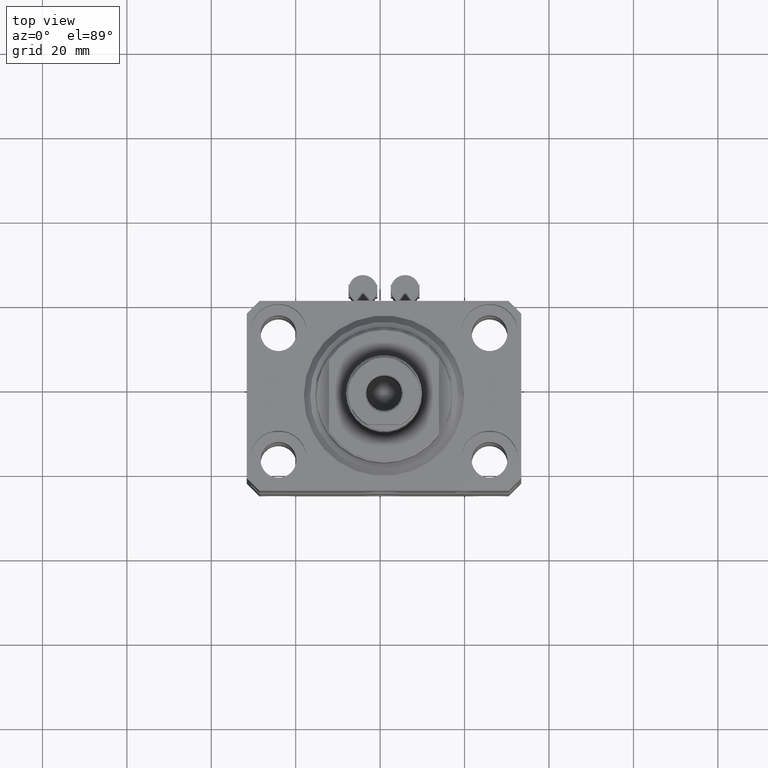
[diagram: clean part render]
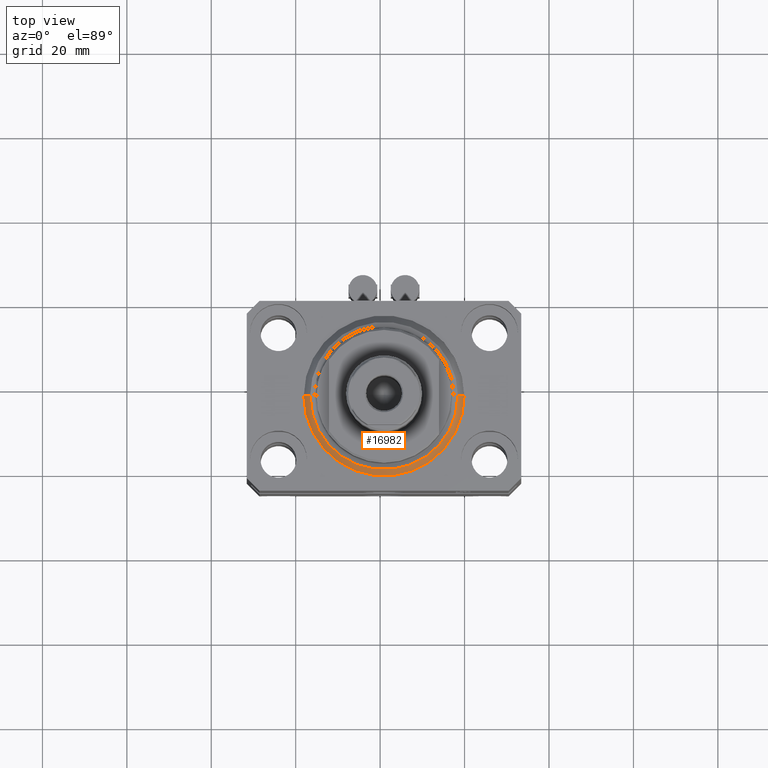
[diagram: same view with one face highlighted and labeled with its STEP entity id]
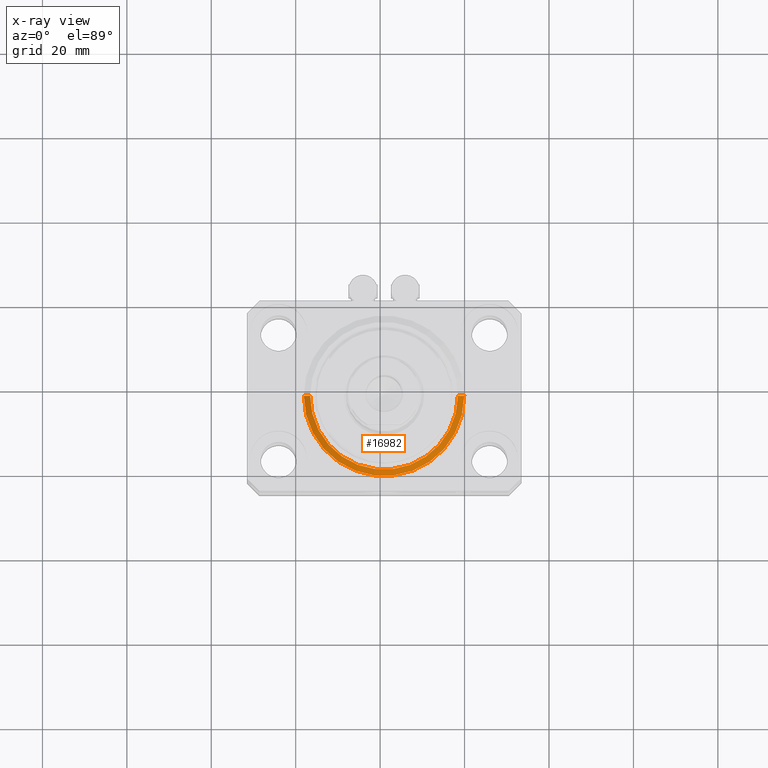
[diagram: x-ray of the same camera — body ghosted, the highlighted face saturated]
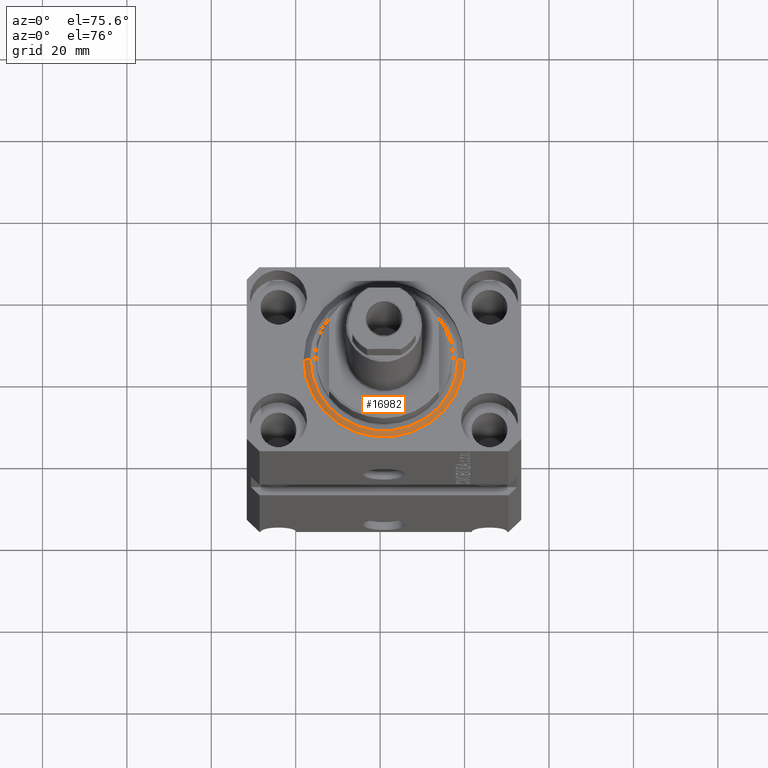
[diagram: same view with one face highlighted and labeled with its STEP entity id]
A machine part, top view. The second image highlights one B-rep face of the part: STEP entity #16982.
The next image is the same camera in x-ray: the body ghosted, the highlighted face saturated — about 0% of this face is hidden behind the body in this view.
A second angle (auxiliary view) of the same face is appended — the face is thin or edge-on in the first view.
In plain terms, the highlighted conical surface has half-angle 45 deg.
Its self-contained STEP definition (entity closure, byte-faithful):
#2348 = EDGE_CURVE ( 'NONE', #29881, #16107, #15129, .T. ) ;
#2375 = VERTEX_POINT ( 'NONE', #14565 ) ;
#5056 = VECTOR ( 'NONE', #17753, 1000.000000000000000 ) ;
#7514 = ORIENTED_EDGE ( 'NONE', *, *, #12494, .T. ) ;
#10868 = LINE ( 'NONE', #38375, #5056 ) ;
#11314 = ORIENTED_EDGE ( 'NONE', *, *, #27725, .F. ) ;
#12494 = EDGE_CURVE ( 'NONE', #2375, #16107, #32538, .T. ) ;
#14229 = DIRECTION ( 'NONE',  ( 0.7071067811865483499, 0.000000000000000000, 0.7071067811865467956 ) ) ;
#14565 = CARTESIAN_POINT ( 'NONE',  ( 17.49999999999999645, 0.000000000000000000, 0.000000000000000000 ) ) ;
#15129 = CIRCLE ( 'NONE', #26814, 19.00000000000000000 ) ;
#16107 = VERTEX_POINT ( 'NONE', #28023 ) ;
#16982 = ADVANCED_FACE ( 'NONE', ( #24232 ), #43269, .T. ) ;
#17357 = CARTESIAN_POINT ( 'NONE',  ( 0.000000000000000000, 0.000000000000000000, 1.500000000000001332 ) ) ;
#17753 = DIRECTION ( 'NONE',  ( -0.7071067811865483499, 8.659560562354942719E-17, 0.7071067811865467956 ) ) ;
#17782 = DIRECTION ( 'NONE',  ( -0.000000000000000000, -0.000000000000000000, 1.000000000000000000 ) ) ;
#20183 = DIRECTION ( 'NONE',  ( -0.000000000000000000, -0.000000000000000000, -1.000000000000000000 ) ) ;
#20768 = VERTEX_POINT ( 'NONE', #34523 ) ;
#20904 = AXIS2_PLACEMENT_3D ( 'NONE', #27995, #20183, #31422 ) ;
#23043 = ORIENTED_EDGE ( 'NONE', *, *, #2348, .F. ) ;
#23090 = CIRCLE ( 'NONE', #20904, 17.49999999999999645 ) ;
#24232 = FACE_OUTER_BOUND ( 'NONE', #42570, .T. ) ;
#26814 = AXIS2_PLACEMENT_3D ( 'NONE', #31522, #17782, #28087 ) ;
#27725 = EDGE_CURVE ( 'NONE', #2375, #20768, #23090, .T. ) ;
#27903 = DIRECTION ( 'NONE',  ( 1.000000000000000000, 0.000000000000000000, 0.000000000000000000 ) ) ;
#27995 = CARTESIAN_POINT ( 'NONE',  ( 0.000000000000000000, 0.000000000000000000, 0.000000000000000000 ) ) ;
#28023 = CARTESIAN_POINT ( 'NONE',  ( 19.00000000000000000, 2.326828918379970970E-15, 1.500000000000001332 ) ) ;
#28087 = DIRECTION ( 'NONE',  ( 1.000000000000000000, 0.000000000000000000, 0.000000000000000000 ) ) ;
#28401 = CARTESIAN_POINT ( 'NONE',  ( -19.00000000000000000, 0.000000000000000000, 1.500000000000001332 ) ) ;
#29360 = AXIS2_PLACEMENT_3D ( 'NONE', #17357, #34765, #27903 ) ;
#29881 = VERTEX_POINT ( 'NONE', #28401 ) ;
#31422 = DIRECTION ( 'NONE',  ( 1.000000000000000000, 0.000000000000000000, 0.000000000000000000 ) ) ;
#31522 = CARTESIAN_POINT ( 'NONE',  ( 0.000000000000000000, 0.000000000000000000, 1.500000000000001332 ) ) ;
#31634 = CARTESIAN_POINT ( 'NONE',  ( 19.00000000000000000, 0.000000000000000000, 1.500000000000001332 ) ) ;
#32538 = LINE ( 'NONE', #31634, #39468 ) ;
#34523 = CARTESIAN_POINT ( 'NONE',  ( -17.49999999999999645, 2.234980408443919215E-15, 0.000000000000000000 ) ) ;
#34765 = DIRECTION ( 'NONE',  ( -0.000000000000000000, -0.000000000000000000, 1.000000000000000000 ) ) ;
#36573 = ORIENTED_EDGE ( 'NONE', *, *, #40690, .F. ) ;
#38375 = CARTESIAN_POINT ( 'NONE',  ( -19.00000000000000000, 2.326828918379970970E-15, 1.500000000000001332 ) ) ;
#39468 = VECTOR ( 'NONE', #14229, 1000.000000000000000 ) ;
#40690 = EDGE_CURVE ( 'NONE', #20768, #29881, #10868, .T. ) ;
#42570 = EDGE_LOOP ( 'NONE', ( #36573, #11314, #7514, #23043 ) ) ;
#43269 = CONICAL_SURFACE ( 'NONE', #29360, 19.00000000000000000, 0.7853981633974492782 ) ;